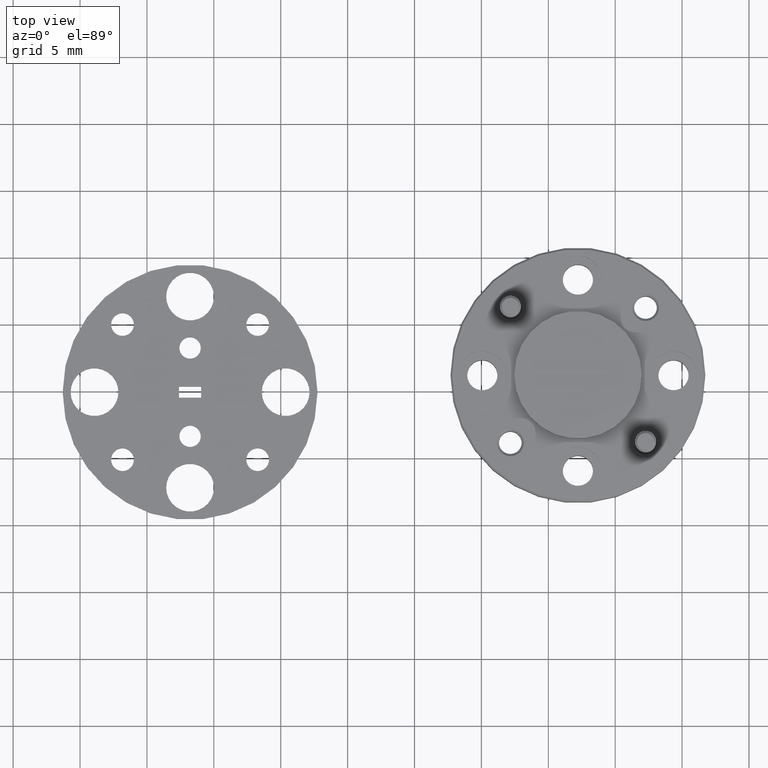
[diagram: clean part render]
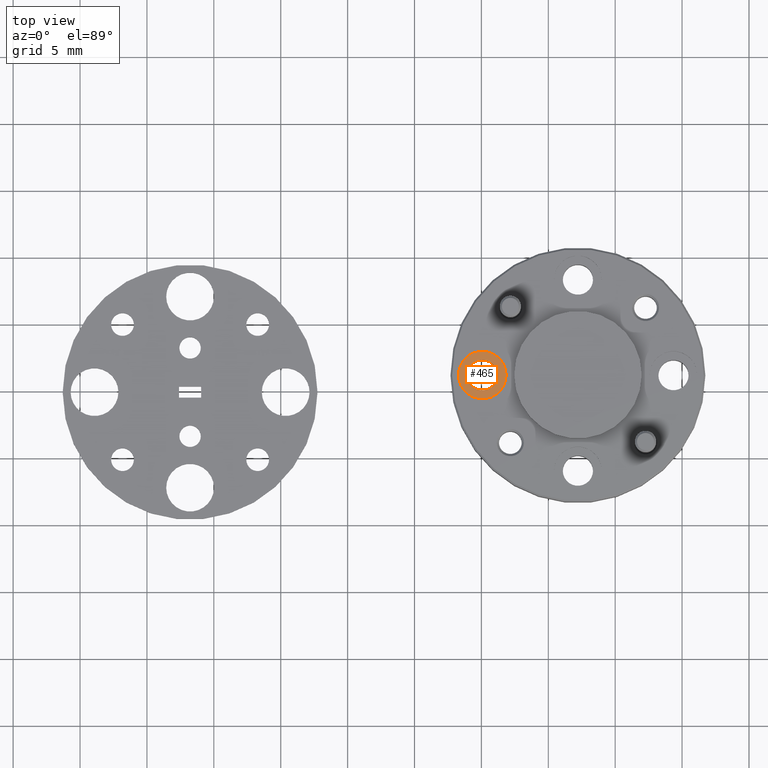
[diagram: same view with one face highlighted and labeled with its STEP entity id]
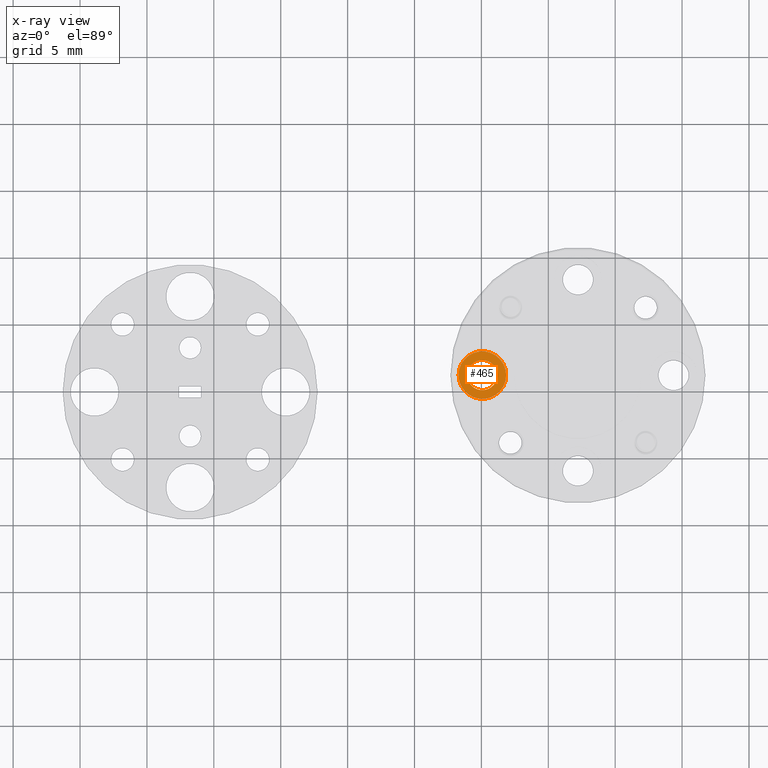
[diagram: x-ray of the same camera — body ghosted, the highlighted face saturated]
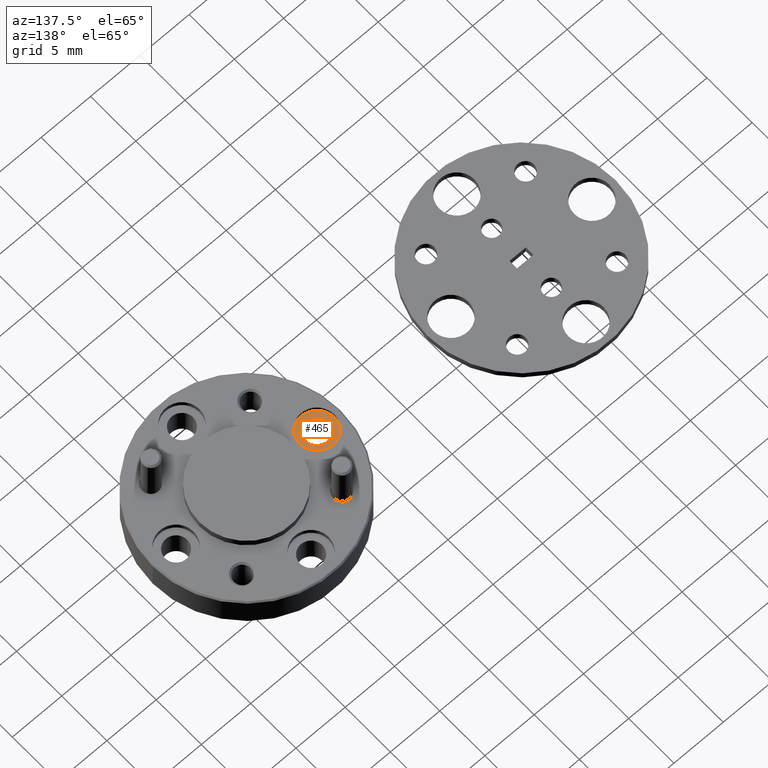
[diagram: same view with one face highlighted and labeled with its STEP entity id]
A machine part, top view. The second image highlights one B-rep face of the part: STEP entity #465.
The next image is the same camera in x-ray: the body ghosted, the highlighted face saturated — about 0% of this face is hidden behind the body in this view.
A second angle (auxiliary view) of the same face is appended — the face is thin or edge-on in the first view.
In plain terms, the highlighted planar face has unit normal (0, 0, 1).
Its self-contained STEP definition (entity closure, byte-faithful):
#26 = CARTESIAN_POINT ( 'NONE',  ( -1.108333880472367700, 1.222388916362182800, -0.3270940517253738700 ) ) ;
#59 = CIRCLE ( 'NONE', #1586, 0.04449999999999962300 ) ;
#201 = ORIENTED_EDGE ( 'NONE', *, *, #2042, .T. ) ;
#257 = ORIENTED_EDGE ( 'NONE', *, *, #1292, .T. ) ;
#266 = VERTEX_POINT ( 'NONE', #2777 ) ;
#267 = FACE_OUTER_BOUND ( 'NONE', #2162, .T. ) ;
#389 = CARTESIAN_POINT ( 'NONE',  ( -1.178333880472367500, 1.222388916362182800, -0.3270940517253738700 ) ) ;
#465 = ADVANCED_FACE ( 'NONE', ( #267, #1825 ), #567, .T. ) ;
#567 = PLANE ( 'NONE',  #1985 ) ;
#624 = DIRECTION ( 'NONE',  ( 0.0000000000000000000, 0.0000000000000000000, 1.000000000000000000 ) ) ;
#681 = AXIS2_PLACEMENT_3D ( 'NONE', #1495, #624, #1033 ) ;
#788 = CARTESIAN_POINT ( 'NONE',  ( -1.178333880472367500, 1.222388916362182800, -0.3270940517253738700 ) ) ;
#817 = EDGE_LOOP ( 'NONE', ( #257, #2500 ) ) ;
#840 = DIRECTION ( 'NONE',  ( 1.000000000000000000, 0.0000000000000000000, 0.0000000000000000000 ) ) ;
#920 = EDGE_CURVE ( 'NONE', #266, #1212, #1429, .T. ) ;
#923 = VERTEX_POINT ( 'NONE', #1083 ) ;
#1033 = DIRECTION ( 'NONE',  ( 1.000000000000000000, 0.0000000000000000000, 0.0000000000000000000 ) ) ;
#1083 = CARTESIAN_POINT ( 'NONE',  ( -1.133833880472368000, 1.222388916362182800, -0.3270940517253738700 ) ) ;
#1204 = DIRECTION ( 'NONE',  ( 1.000000000000000000, 0.0000000000000000000, 0.0000000000000000000 ) ) ;
#1212 = VERTEX_POINT ( 'NONE', #26 ) ;
#1219 = ORIENTED_EDGE ( 'NONE', *, *, #920, .T. ) ;
#1271 = CIRCLE ( 'NONE', #1697, 0.04449999999999962300 ) ;
#1292 = EDGE_CURVE ( 'NONE', #923, #2336, #1271, .T. ) ;
#1429 = CIRCLE ( 'NONE', #2388, 0.06999999999999993700 ) ;
#1495 = CARTESIAN_POINT ( 'NONE',  ( -1.178333880472367500, 1.222388916362182800, -0.3270940517253738700 ) ) ;
#1528 = DIRECTION ( 'NONE',  ( 1.000000000000000000, 0.0000000000000000000, 0.0000000000000000000 ) ) ;
#1559 = EDGE_CURVE ( 'NONE', #2336, #923, #59, .T. ) ;
#1586 = AXIS2_PLACEMENT_3D ( 'NONE', #2663, #2912, #1528 ) ;
#1674 = DIRECTION ( 'NONE',  ( 0.0000000000000000000, 0.0000000000000000000, 1.000000000000000000 ) ) ;
#1697 = AXIS2_PLACEMENT_3D ( 'NONE', #2120, #2556, #1204 ) ;
#1825 = FACE_BOUND ( 'NONE', #817, .T. ) ;
#1980 = CIRCLE ( 'NONE', #681, 0.06999999999999993700 ) ;
#1985 = AXIS2_PLACEMENT_3D ( 'NONE', #788, #1674, #2175 ) ;
#2042 = EDGE_CURVE ( 'NONE', #1212, #266, #1980, .T. ) ;
#2120 = CARTESIAN_POINT ( 'NONE',  ( -1.178333880472367500, 1.222388916362182800, -0.3270940517253738700 ) ) ;
#2162 = EDGE_LOOP ( 'NONE', ( #201, #1219 ) ) ;
#2175 = DIRECTION ( 'NONE',  ( 1.000000000000000000, 0.0000000000000000000, -0.0000000000000000000 ) ) ;
#2233 = DIRECTION ( 'NONE',  ( 0.0000000000000000000, 0.0000000000000000000, 1.000000000000000000 ) ) ;
#2336 = VERTEX_POINT ( 'NONE', #2811 ) ;
#2388 = AXIS2_PLACEMENT_3D ( 'NONE', #389, #2233, #840 ) ;
#2500 = ORIENTED_EDGE ( 'NONE', *, *, #1559, .T. ) ;
#2556 = DIRECTION ( 'NONE',  ( -0.0000000000000000000, -0.0000000000000000000, -1.000000000000000000 ) ) ;
#2663 = CARTESIAN_POINT ( 'NONE',  ( -1.178333880472367500, 1.222388916362182800, -0.3270940517253738700 ) ) ;
#2777 = CARTESIAN_POINT ( 'NONE',  ( -1.248333880472367600, 1.222388916362182800, -0.3270940517253738700 ) ) ;
#2811 = CARTESIAN_POINT ( 'NONE',  ( -1.222833880472367300, 1.222388916362182800, -0.3270940517253738700 ) ) ;
#2912 = DIRECTION ( 'NONE',  ( -0.0000000000000000000, -0.0000000000000000000, -1.000000000000000000 ) ) ;